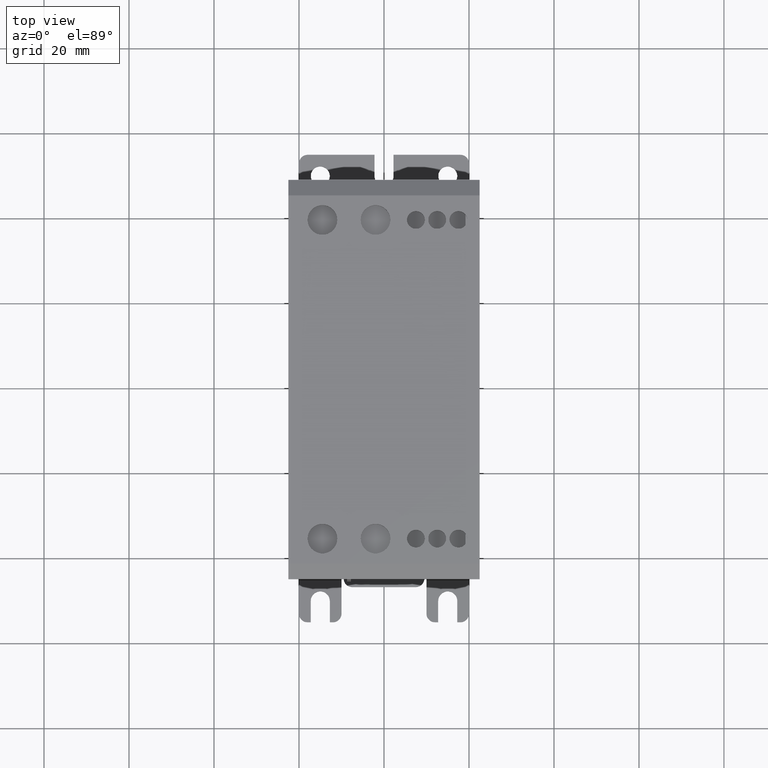
[diagram: clean part render]
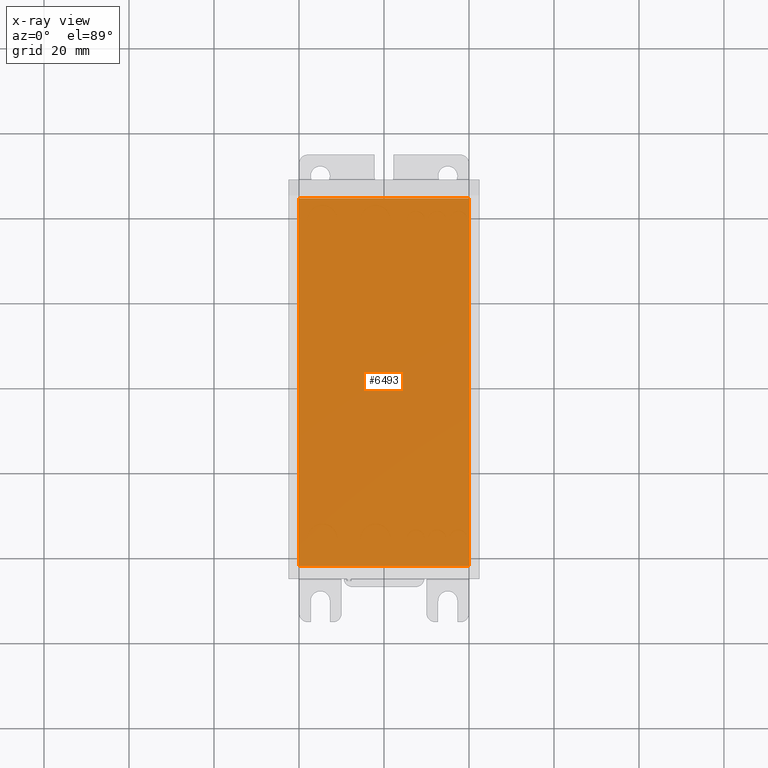
[diagram: x-ray — body ghosted, one internal face saturated and labeled with its STEP entity id]
A machine part, top view, then the same camera in x-ray: the body is ghosted and one INTERNAL B-rep face — a face not visible from any outside direction — is saturated and labeled: STEP entity #6493.
In plain terms, the highlighted planar face has unit normal (0, 0, 1).
Its self-contained STEP definition (entity closure, byte-faithful):
#523 = FACE_OUTER_BOUND ( 'NONE', #7036, .T. ) ;
#694 = LINE ( 'NONE', #10349, #10147 ) ;
#745 = VECTOR ( 'NONE', #5758, 39.37007874015748143 ) ;
#758 = CARTESIAN_POINT ( 'NONE',  ( 0.000000000000000000, -1.704724409448818978, 0.000000000000000000 ) ) ;
#862 = CARTESIAN_POINT ( 'NONE',  ( 0.7874015748031496509, 0.000000000000000000, 0.000000000000000000 ) ) ;
#1543 = LINE ( 'NONE', #5516, #8756 ) ;
#1593 = DIRECTION ( 'NONE',  ( -0.000000000000000000, -1.000000000000000000, -0.000000000000000000 ) ) ;
#1822 = VERTEX_POINT ( 'NONE', #6667 ) ;
#2066 = VECTOR ( 'NONE', #9631, 39.37007874015748143 ) ;
#2078 = ORIENTED_EDGE ( 'NONE', *, *, #3736, .T. ) ;
#2276 = VERTEX_POINT ( 'NONE', #5176 ) ;
#2337 = VERTEX_POINT ( 'NONE', #10848 ) ;
#3723 = EDGE_CURVE ( 'NONE', #1822, #2276, #5692, .T. ) ;
#3736 = EDGE_CURVE ( 'NONE', #2337, #1822, #694, .T. ) ;
#3853 = DIRECTION ( 'NONE',  ( -1.000000000000000000, -0.000000000000000000, -0.000000000000000000 ) ) ;
#4435 = PLANE ( 'NONE',  #12039 ) ;
#5087 = ORIENTED_EDGE ( 'NONE', *, *, #5368, .T. ) ;
#5176 = CARTESIAN_POINT ( 'NONE',  ( 0.7874015748031496509, -1.704724409448818978, -4.821444881889763720E-17 ) ) ;
#5368 = EDGE_CURVE ( 'NONE', #6789, #2337, #1543, .T. ) ;
#5516 = CARTESIAN_POINT ( 'NONE',  ( 0.000000000000000000, 1.704724409448818978, 0.000000000000000000 ) ) ;
#5641 = DIRECTION ( 'NONE',  ( 1.000000000000000000, 0.000000000000000000, 0.000000000000000000 ) ) ;
#5692 = LINE ( 'NONE', #758, #745 ) ;
#5758 = DIRECTION ( 'NONE',  ( 1.000000000000000000, 0.000000000000000000, 0.000000000000000000 ) ) ;
#6493 = ADVANCED_FACE ( 'NONE', ( #523 ), #4435, .T. ) ;
#6628 = ORIENTED_EDGE ( 'NONE', *, *, #12607, .T. ) ;
#6667 = CARTESIAN_POINT ( 'NONE',  ( -0.7874015748031496509, -1.704724409448818978, -4.821444881889763720E-17 ) ) ;
#6789 = VERTEX_POINT ( 'NONE', #11827 ) ;
#7036 = EDGE_LOOP ( 'NONE', ( #2078, #7967, #6628, #5087 ) ) ;
#7967 = ORIENTED_EDGE ( 'NONE', *, *, #3723, .T. ) ;
#8338 = CARTESIAN_POINT ( 'NONE',  ( 0.000000000000000000, 0.000000000000000000, 0.000000000000000000 ) ) ;
#8756 = VECTOR ( 'NONE', #3853, 39.37007874015748143 ) ;
#9631 = DIRECTION ( 'NONE',  ( 0.000000000000000000, 1.000000000000000000, 0.000000000000000000 ) ) ;
#9688 = LINE ( 'NONE', #862, #2066 ) ;
#10147 = VECTOR ( 'NONE', #1593, 39.37007874015748143 ) ;
#10349 = CARTESIAN_POINT ( 'NONE',  ( -0.7874015748031496509, 0.000000000000000000, 0.000000000000000000 ) ) ;
#10436 = DIRECTION ( 'NONE',  ( 0.000000000000000000, 0.000000000000000000, 1.000000000000000000 ) ) ;
#10848 = CARTESIAN_POINT ( 'NONE',  ( -0.7874015748031496509, 1.704724409448818978, -2.410722440944881552E-17 ) ) ;
#11827 = CARTESIAN_POINT ( 'NONE',  ( 0.7874015748031496509, 1.704724409448818978, -4.821444881889763720E-17 ) ) ;
#12039 = AXIS2_PLACEMENT_3D ( 'NONE', #8338, #10436, #5641 ) ;
#12607 = EDGE_CURVE ( 'NONE', #2276, #6789, #9688, .T. ) ;